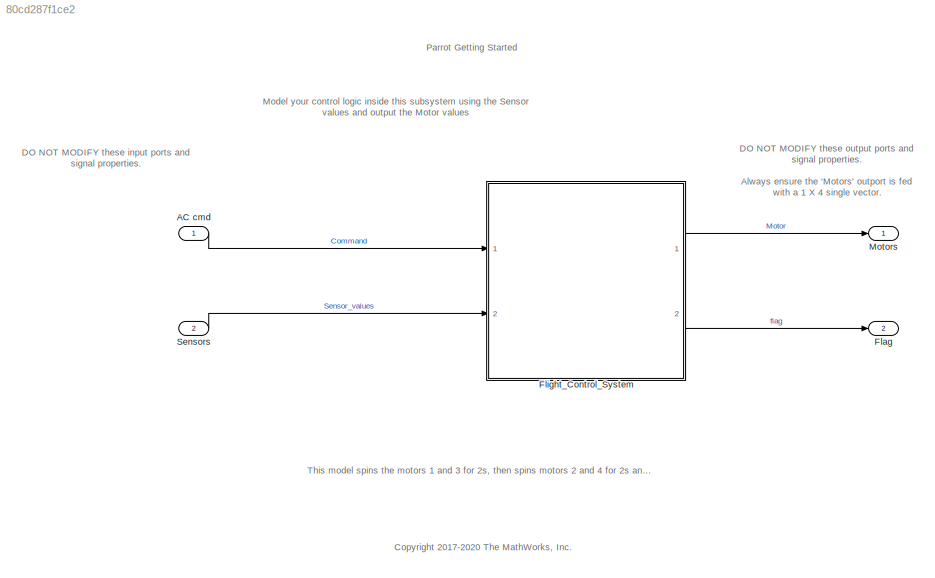
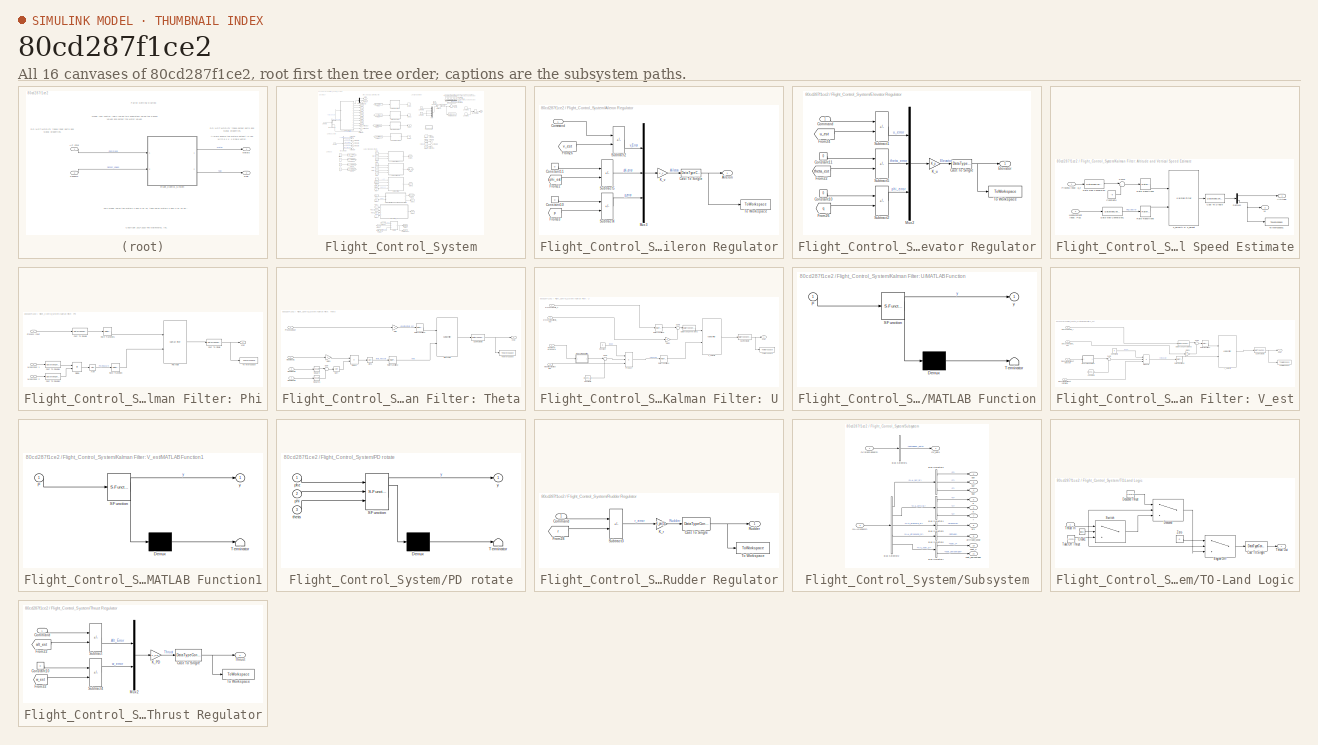
[diagram: thumbnail index - all 16 canvases of the model, root first then tree order]
MODEL slx_80cd287f1ce2
KIND model
CONFIG AbsTol = auto
CONFIG EnableMultiTasking = off
CONFIG FixedStep = auto
CONFIG InitFcn = load('BusDefinitions.mat')
CONFIG MaxStep = auto
CONFIG MinStep = auto
CONFIG RelTol = 1e-3
CONFIG SampleTimeConstraint = Unconstrained
CONFIG SolverName = FixedStepAuto
CONFIG StartTime = 0.0
CONFIG StopTime = 100
BLOCK [Inport] AC cmd
  BusOutputAsStruct = on
  OutDataTypeStr = Bus: CommandBus
BLOCK [Outport] Flag
  OutDataTypeStr = uint8
  Port = 2
  PortDimensions = 1
  VectorParamsAs1DForOutWhenUnconnected = off
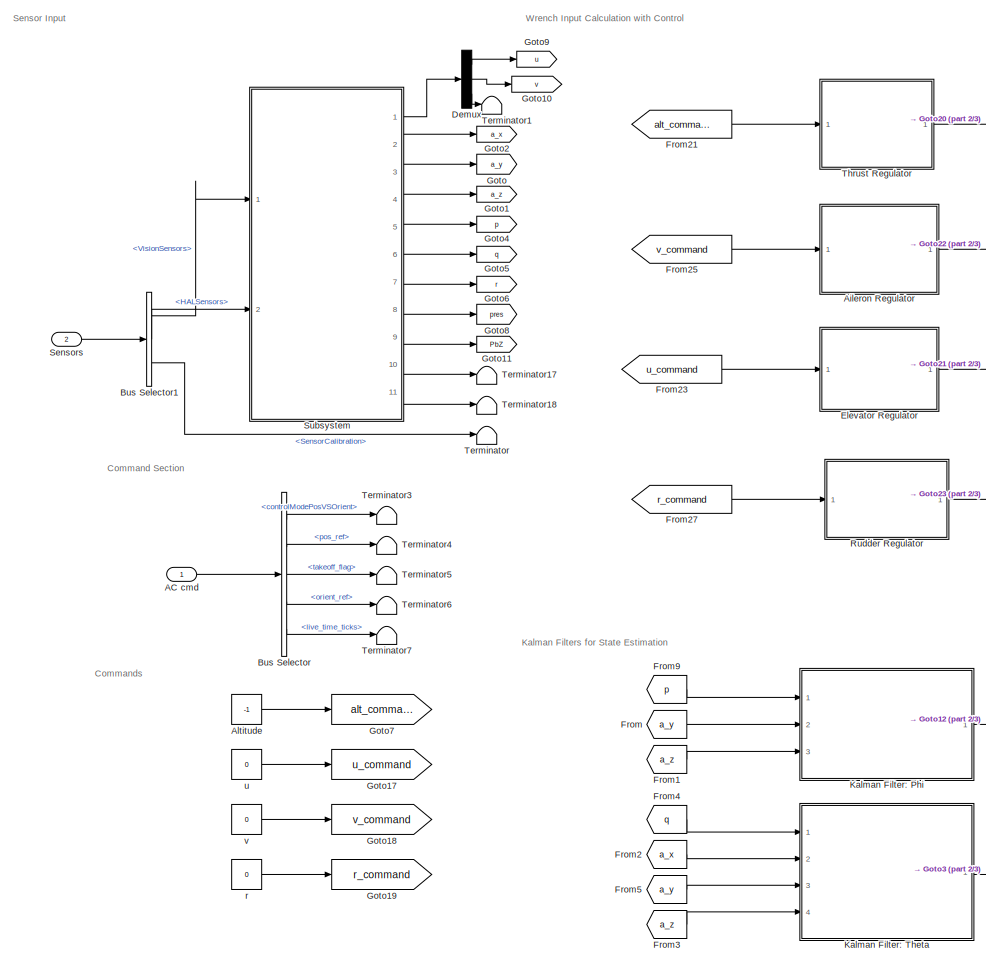
[diagram: Flight_Control_System - part 1/3, top left region]
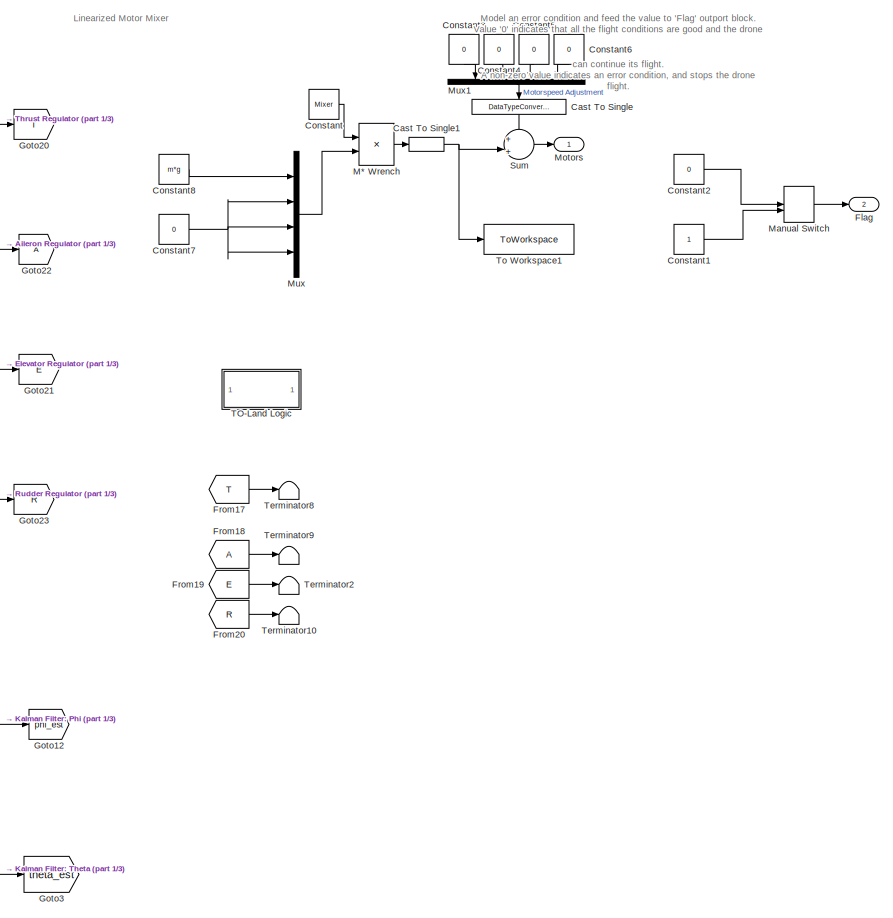
[diagram: Flight_Control_System - part 2/3, top right region]
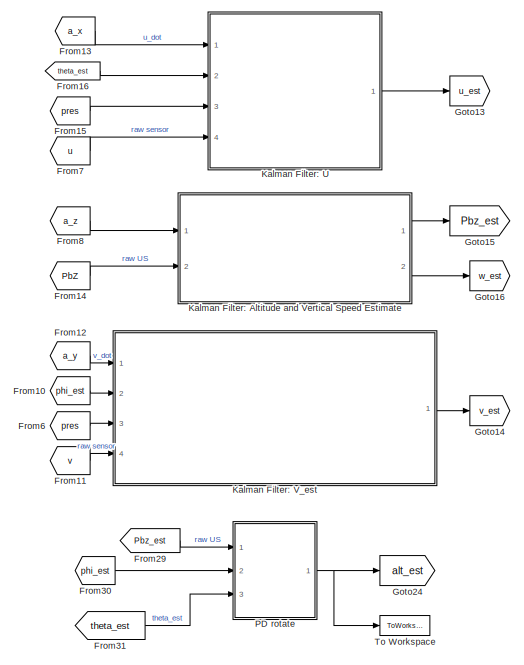
[diagram: Flight_Control_System - part 3/3, bottom center region]
BLOCK [SubSystem] Flight_Control_System
  InitFcn = codertarget.parrot.internal.fcsSubsystemCallback(gcb);
  Ports = [2, 2]
  RTWSystemCode = Reusable function
  RequestExecContextInheritance = off
BLOCK [Inport] Flight_Control_System/AC cmd
BLOCK [SubSystem] Flight_Control_System/Aileron Regulator
  Ports = [1, 1]
  RequestExecContextInheritance = off
BLOCK [Outport] Flight_Control_System/Aileron Regulator/Aileron
BLOCK [DataTypeConversion] Flight_Control_System/Aileron Regulator/Cast To Single
  OutDataTypeStr = single
  RndMeth = Floor
  SaturateOnIntegerOverflow = off
BLOCK [Inport] Flight_Control_System/Aileron Regulator/Command
BLOCK [Constant] Flight_Control_System/Aileron Regulator/Constant10
  Value = 0
BLOCK [Constant] Flight_Control_System/Aileron Regulator/Constant11
  Value = 0
BLOCK [From] Flight_Control_System/Aileron Regulator/From22
  GotoTag = phi_est
  TagVisibility = global
BLOCK [From] Flight_Control_System/Aileron Regulator/From26
  GotoTag = v_est
  TagVisibility = global
BLOCK [From] Flight_Control_System/Aileron Regulator/From33
  GotoTag = p
  TagVisibility = global
BLOCK [Gain] Flight_Control_System/Aileron Regulator/K_v
  Gain = K_v
  Multiplication = Matrix(K*u)
BLOCK [Mux] Flight_Control_System/Aileron Regulator/Mux3
  DisplayOption = bar
  Inputs = 3
  Ports = [3, 1]
BLOCK [Sum] Flight_Control_System/Aileron Regulator/Subtract2
  IconShape = rectangular
  Inputs = +-
  Ports = [2, 1]
BLOCK [Sum] Flight_Control_System/Aileron Regulator/Subtract4
  IconShape = rectangular
  Inputs = +-
  Ports = [2, 1]
BLOCK [Sum] Flight_Control_System/Aileron Regulator/Subtract5
  IconShape = rectangular
  Inputs = +-
  Ports = [2, 1]
BLOCK [ToWorkspace] Flight_Control_System/Aileron Regulator/To Workspace
  FixptAsFi = on
  MaxDataPoints = inf
  Ports = [1]
  SampleTime = -1
  SaveFormat = Timeseries
  VariableName = aileron_out
BLOCK [Constant] Flight_Control_System/Altitude
  Value = -1
BLOCK [BusSelector] Flight_Control_System/Bus Selector
  OutputSignals = controlModePosVSOrient,pos_ref,takeoff_flag,orient_ref,live_time_ticks
  Ports = [1, 5]
BLOCK [BusSelector] Flight_Control_System/Bus Selector1
  OutputSignals = VisionSensors,HALSensors,SensorCalibration
  Ports = [1, 3]
BLOCK [DataTypeConversion] Flight_Control_System/Cast To Single
  NameLocation = left
  OutDataTypeStr = single
  RndMeth = Floor
  SaturateOnIntegerOverflow = off
BLOCK [DataTypeConversion] Flight_Control_System/Cast To Single1
  OutDataTypeStr = single
  RndMeth = Floor
  SaturateOnIntegerOverflow = off
BLOCK [Constant] Flight_Control_System/Constant
  Value = Mixer
BLOCK [Constant] Flight_Control_System/Constant1
  OutDataTypeStr = uint8
BLOCK [Constant] Flight_Control_System/Constant2
  OutDataTypeStr = uint8
  Value = 0
BLOCK [Constant] Flight_Control_System/Constant3
  NameLocation = left
  Value = 0
BLOCK [Constant] Flight_Control_System/Constant4
  NameLocation = left
  Value = 0
BLOCK [Constant] Flight_Control_System/Constant5
  NameLocation = left
  Value = 0
BLOCK [Constant] Flight_Control_System/Constant6
  NameLocation = left
  Value = 0
BLOCK [Constant] Flight_Control_System/Constant7
  Value = 0
BLOCK [Constant] Flight_Control_System/Constant8
  Value = m*g
BLOCK [Demux] Flight_Control_System/Demux
  Outputs = 3
  Ports = [1, 3]
BLOCK [SubSystem] Flight_Control_System/Elevator Regulator
  Ports = [1, 1]
  RequestExecContextInheritance = off
BLOCK [DataTypeConversion] Flight_Control_System/Elevator Regulator/Cast To Single
  OutDataTypeStr = single
  RndMeth = Floor
  SaturateOnIntegerOverflow = off
BLOCK [Inport] Flight_Control_System/Elevator Regulator/Command
BLOCK [Constant] Flight_Control_System/Elevator Regulator/Constant10
  Value = 0
BLOCK [Constant] Flight_Control_System/Elevator Regulator/Constant11
  Value = 0
BLOCK [Outport] Flight_Control_System/Elevator Regulator/Elevator
BLOCK [From] Flight_Control_System/Elevator Regulator/From22
  GotoTag = theta_est
  TagVisibility = global
BLOCK [From] Flight_Control_System/Elevator Regulator/From24
  GotoTag = u_est
  TagVisibility = global
BLOCK [From] Flight_Control_System/Elevator Regulator/From26
  GotoTag = q
  TagVisibility = global
BLOCK [Gain] Flight_Control_System/Elevator Regulator/K_u
  Gain = K_u
  Multiplication = Matrix(K*u)
BLOCK [Mux] Flight_Control_System/Elevator Regulator/Mux2
  DisplayOption = bar
  Inputs = 3
  Ports = [3, 1]
BLOCK [Sum] Flight_Control_System/Elevator Regulator/Subtract1
  IconShape = rectangular
  Inputs = +-
  Ports = [2, 1]
BLOCK [Sum] Flight_Control_System/Elevator Regulator/Subtract2
  IconShape = rectangular
  Inputs = +-
  Ports = [2, 1]
BLOCK [Sum] Flight_Control_System/Elevator Regulator/Subtract5
  IconShape = rectangular
  Inputs = +-
  Ports = [2, 1]
BLOCK [ToWorkspace] Flight_Control_System/Elevator Regulator/To Workspace
  FixptAsFi = on
  MaxDataPoints = inf
  Ports = [1]
  SampleTime = -1
  SaveFormat = Timeseries
  VariableName = elevator_out
BLOCK [Outport] Flight_Control_System/Flag
  Port = 2
  VectorParamsAs1DForOutWhenUnconnected = off
BLOCK [From] Flight_Control_System/From
  GotoTag = a_y
BLOCK [From] Flight_Control_System/From1
  GotoTag = a_z
BLOCK [From] Flight_Control_System/From10
  GotoTag = phi_est
  TagVisibility = global
BLOCK [From] Flight_Control_System/From11
  GotoTag = v
BLOCK [From] Flight_Control_System/From12
  GotoTag = a_y
BLOCK [From] Flight_Control_System/From13
  GotoTag = a_x
BLOCK [From] Flight_Control_System/From14
  GotoTag = PbZ
BLOCK [From] Flight_Control_System/From15
  GotoTag = pres
BLOCK [From] Flight_Control_System/From16
  GotoTag = theta_est
  TagVisibility = global
BLOCK [From] Flight_Control_System/From17
  GotoTag = T
BLOCK [From] Flight_Control_System/From18
BLOCK [From] Flight_Control_System/From19
  GotoTag = E
BLOCK [From] Flight_Control_System/From2
  GotoTag = a_x
BLOCK [From] Flight_Control_System/From20
  GotoTag = R
BLOCK [From] Flight_Control_System/From21
  GotoTag = alt_command
BLOCK [From] Flight_Control_System/From23
  GotoTag = u_command
BLOCK [From] Flight_Control_System/From25
  GotoTag = v_command
BLOCK [From] Flight_Control_System/From27
  GotoTag = r_command
BLOCK [From] Flight_Control_System/From29
  GotoTag = Pbz_est
  TagVisibility = global
BLOCK [From] Flight_Control_System/From3
  GotoTag = a_z
BLOCK [From] Flight_Control_System/From30
  GotoTag = phi_est
  TagVisibility = global
BLOCK [From] Flight_Control_System/From31
  GotoTag = theta_est
  TagVisibility = global
BLOCK [From] Flight_Control_System/From4
  GotoTag = q
  TagVisibility = global
BLOCK [From] Flight_Control_System/From5
  GotoTag = a_y
BLOCK [From] Flight_Control_System/From6
  GotoTag = pres
BLOCK [From] Flight_Control_System/From7
  GotoTag = u
BLOCK [From] Flight_Control_System/From8
  GotoTag = a_z
BLOCK [From] Flight_Control_System/From9
  GotoTag = p
  TagVisibility = global
BLOCK [Goto] Flight_Control_System/Goto
  GotoTag = a_y
BLOCK [Goto] Flight_Control_System/Goto1
  GotoTag = a_z
BLOCK [Goto] Flight_Control_System/Goto10
  GotoTag = v
BLOCK [Goto] Flight_Control_System/Goto11
  GotoTag = PbZ
BLOCK [Goto] Flight_Control_System/Goto12
  GotoTag = phi_est
  TagVisibility = global
BLOCK [Goto] Flight_Control_System/Goto13
  GotoTag = u_est
  TagVisibility = global
BLOCK [Goto] Flight_Control_System/Goto14
  GotoTag = v_est
  TagVisibility = global
BLOCK [Goto] Flight_Control_System/Goto15
  GotoTag = Pbz_est
  TagVisibility = global
BLOCK [Goto] Flight_Control_System/Goto16
  GotoTag = w_est
  TagVisibility = global
BLOCK [Goto] Flight_Control_System/Goto17
  GotoTag = u_command
BLOCK [Goto] Flight_Control_System/Goto18
  GotoTag = v_command
BLOCK [Goto] Flight_Control_System/Goto19
  GotoTag = r_command
BLOCK [Goto] Flight_Control_System/Goto2
  GotoTag = a_x
BLOCK [Goto] Flight_Control_System/Goto20
  GotoTag = T
BLOCK [Goto] Flight_Control_System/Goto21
  GotoTag = E
BLOCK [Goto] Flight_Control_System/Goto22
BLOCK [Goto] Flight_Control_System/Goto23
  GotoTag = R
BLOCK [Goto] Flight_Control_System/Goto24
  GotoTag = alt_est
  TagVisibility = global
BLOCK [Goto] Flight_Control_System/Goto3
  GotoTag = theta_est
  TagVisibility = global
BLOCK [Goto] Flight_Control_System/Goto4
  GotoTag = p
  TagVisibility = global
BLOCK [Goto] Flight_Control_System/Goto5
  GotoTag = q
  TagVisibility = global
BLOCK [Goto] Flight_Control_System/Goto6
  GotoTag = r
  TagVisibility = global
BLOCK [Goto] Flight_Control_System/Goto7
  GotoTag = alt_command
BLOCK [Goto] Flight_Control_System/Goto8
  GotoTag = pres
BLOCK [Goto] Flight_Control_System/Goto9
  GotoTag = u
BLOCK [SubSystem] Flight_Control_System/Kalman Filter: Altitude and Vertical Speed Estimate
  Ports = [2, 2]
  RequestExecContextInheritance = off
BLOCK [Outport] Flight_Control_System/Kalman Filter: Altitude and Vertical Speed Estimate/Altitude
BLOCK [DataTypeConversion] Flight_Control_System/Kalman Filter: Altitude and Vertical Speed Estimate/Cast To Single
  OutDataTypeStr = single
  RndMeth = Floor
  SaturateOnIntegerOverflow = off
BLOCK [Constant] Flight_Control_System/Kalman Filter: Altitude and Vertical Speed Estimate/Constant6
  Value = -9
BLOCK [DataTypeConversion] Flight_Control_System/Kalman Filter: Altitude and Vertical Speed Estimate/Data Type Conversion
  OutDataTypeStr = double
  RndMeth = Floor
  SaturateOnIntegerOverflow = off
BLOCK [DataTypeConversion] Flight_Control_System/Kalman Filter: Altitude and Vertical Speed Estimate/Data Type Conversion1
  OutDataTypeStr = double
  RndMeth = Floor
  SaturateOnIntegerOverflow = off
BLOCK [Demux] Flight_Control_System/Kalman Filter: Altitude and Vertical Speed Estimate/Demux1
  Outputs = 2
  Ports = [1, 2]
BLOCK [Inport] Flight_Control_System/Kalman Filter: Altitude and Vertical Speed Estimate/Measurement Input: PbZ
  Port = 2
BLOCK [Inport] Flight_Control_System/Kalman Filter: Altitude and Vertical Speed Estimate/Process Input: a_z 
BLOCK [RateTransition] Flight_Control_System/Kalman Filter: Altitude and Vertical Speed Estimate/Rate Transition8
  OutPortSampleTime = 1/200
BLOCK [RateTransition] Flight_Control_System/Kalman Filter: Altitude and Vertical Speed Estimate/Rate Transition9
  OutPortSampleTime = 1/200
BLOCK [Sum] Flight_Control_System/Kalman Filter: Altitude and Vertical Speed Estimate/Sum5
  Inputs = |+-
  Ports = [2, 1]
BLOCK [ToWorkspace] Flight_Control_System/Kalman Filter: Altitude and Vertical Speed Estimate/To Workspace1
  FixptAsFi = on
  MaxDataPoints = inf
  Ports = [1]
  SampleTime = -1
  SaveFormat = Timeseries
  VariableName = w_est
BLOCK [Outport] Flight_Control_System/Kalman Filter: Altitude and Vertical Speed Estimate/W
  Port = 2
BLOCK [Reference] Flight_Control_System/Kalman Filter: Altitude and Vertical Speed Estimate/z_velocity & z_height  REF=ctrlSharedLib/Kalman Filter
  Ports = [2, 1]
  SourceBlock = ctrlSharedLib/Kalman Filter
  SourceProductBaseCode = CT,ID
  SourceType = ctrlKalmanFilter
BLOCK [SubSystem] Flight_Control_System/Kalman Filter: Phi
  Ports = [3, 1]
  RequestExecContextInheritance = off
BLOCK [Trigonometry] Flight_Control_System/Kalman Filter: Phi/Atan
  Operator = atan
  Ports = [1, 1]
BLOCK [DataTypeConversion] Flight_Control_System/Kalman Filter: Phi/Cast To Double
  OutDataTypeStr = double
  RndMeth = Floor
  SaturateOnIntegerOverflow = off
BLOCK [DataTypeConversion] Flight_Control_System/Kalman Filter: Phi/Cast To Double1
  OutDataTypeStr = double
  RndMeth = Floor
  SaturateOnIntegerOverflow = off
BLOCK [DataTypeConversion] Flight_Control_System/Kalman Filter: Phi/Cast To Double2
  OutDataTypeStr = double
  RndMeth = Floor
  SaturateOnIntegerOverflow = off
BLOCK [DataTypeConversion] Flight_Control_System/Kalman Filter: Phi/Cast To Single
  OutDataTypeStr = single
  RndMeth = Floor
  SaturateOnIntegerOverflow = off
BLOCK [Product] Flight_Control_System/Kalman Filter: Phi/Divide
  Inputs = */
  Ports = [2, 1]
BLOCK [Inport] Flight_Control_System/Kalman Filter: Phi/Model input 1
  Port = 2
BLOCK [Inport] Flight_Control_System/Kalman Filter: Phi/Model input 2
  Port = 3
BLOCK [Inport] Flight_Control_System/Kalman Filter: Phi/Process Input
BLOCK [RateTransition] Flight_Control_System/Kalman Filter: Phi/Rate Transition
  OutPortSampleTime = 1/200
BLOCK [RateTransition] Flight_Control_System/Kalman Filter: Phi/Rate Transition1
  OutPortSampleTime = 1/200
BLOCK [Reference] Flight_Control_System/Kalman Filter: Phi/Roll Angle  REF=ctrlSharedLib/Kalman Filter
  Ports = [2, 1]
  SourceBlock = ctrlSharedLib/Kalman Filter
  SourceProductBaseCode = CT,ID
  SourceType = ctrlKalmanFilter
BLOCK [ToWorkspace] Flight_Control_System/Kalman Filter: Phi/To Workspace
  FixptAsFi = on
  MaxDataPoints = inf
  Ports = [1]
  SampleTime = -1
  SaveFormat = Timeseries
  VariableName = phi_est
BLOCK [Outport] Flight_Control_System/Kalman Filter: Phi/xhat
BLOCK [SubSystem] Flight_Control_System/Kalman Filter: Theta
  Ports = [4, 1]
  RequestExecContextInheritance = off
BLOCK [Trigonometry] Flight_Control_System/Kalman Filter: Theta/Atan1
  Operator = atan
  Ports = [1, 1]
BLOCK [DataTypeConversion] Flight_Control_System/Kalman Filter: Theta/Cast To Single
  OutDataTypeStr = single
  RndMeth = Floor
  SaturateOnIntegerOverflow = off
BLOCK [Product] Flight_Control_System/Kalman Filter: Theta/Divide1
  Inputs = */
  Ports = [2, 1]
BLOCK [Gain] Flight_Control_System/Kalman Filter: Theta/Gain
  Gain = -1
BLOCK [Gain] Flight_Control_System/Kalman Filter: Theta/Gain1
  Gain = -1
BLOCK [Inport] Flight_Control_System/Kalman Filter: Theta/Model Input 1
  Port = 2
BLOCK [Inport] Flight_Control_System/Kalman Filter: Theta/Model Input 2
  Port = 3
BLOCK [Inport] Flight_Control_System/Kalman Filter: Theta/Model Input 3
  Port = 4
BLOCK [Reference] Flight_Control_System/Kalman Filter: Theta/Pitch Angle  REF=ctrlSharedLib/Kalman Filter
  Ports = [2, 1]
  SourceBlock = ctrlSharedLib/Kalman Filter
  SourceProductBaseCode = CT,ID
  SourceType = ctrlKalmanFilter
BLOCK [Inport] Flight_Control_System/Kalman Filter: Theta/Process Input
BLOCK [RateTransition] Flight_Control_System/Kalman Filter: Theta/Rate Transition2
  OutPortSampleTime = 1/200
BLOCK [RateTransition] Flight_Control_System/Kalman Filter: Theta/Rate Transition3
  OutPortSampleTime = 1/200
BLOCK [Sqrt] Flight_Control_System/Kalman Filter: Theta/Sqrt
BLOCK [Math] Flight_Control_System/Kalman Filter: Theta/Square
  Operator = square
  Ports = [1, 1]
BLOCK [Math] Flight_Control_System/Kalman Filter: Theta/Square1
  Operator = square
  Ports = [1, 1]
BLOCK [Sum] Flight_Control_System/Kalman Filter: Theta/Sum
  Inputs = |++
  Ports = [2, 1]
BLOCK [ToWorkspace] Flight_Control_System/Kalman Filter: Theta/To Workspace
  FixptAsFi = on
  MaxDataPoints = inf
  Ports = [1]
  SampleTime = -1
  SaveFormat = Timeseries
  VariableName = theta_est
BLOCK [Outport] Flight_Control_System/Kalman Filter: Theta/xhat
BLOCK [SubSystem] Flight_Control_System/Kalman Filter: U
  Ports = [4, 1]
  RequestExecContextInheritance = off
BLOCK [DataTypeConversion] Flight_Control_System/Kalman Filter: U/Cast To Single
  OutDataTypeStr = single
  RndMeth = Floor
  SaturateOnIntegerOverflow = off
BLOCK [Constant] Flight_Control_System/Kalman Filter: U/Constant
  Value = ff
BLOCK [Constant] Flight_Control_System/Kalman Filter: U/Constant5
  Value = ground_alt
BLOCK [DataTypeConversion] Flight_Control_System/Kalman Filter: U/Data Type Conversion2
  OutDataTypeStr = double
  RndMeth = Floor
  SaturateOnIntegerOverflow = off
BLOCK [Gain] Flight_Control_System/Kalman Filter: U/Gain2
  Gain = -g
BLOCK [SubSystem] Flight_Control_System/Kalman Filter: U/MATLAB Function
  ErrorFcn = Stateflow.Translate.translate
  PermitHierarchicalResolution = ExplicitOnly
  Ports = [1, 1]
  RequestExecContextInheritance = off
  SFBlockType = MATLAB Function
  TreatAsAtomicUnit = on
BLOCK [Demux] Flight_Control_System/Kalman Filter: U/MATLAB Function/ Demux 
  Outputs = 1
  Ports = [1, 1]
BLOCK [S-Function] Flight_Control_System/Kalman Filter: U/MATLAB Function/ SFunction 
  EnableBusSupport = on
  FunctionName = sf_sfun
  PortCounts = [1 2]
  Ports = [1, 2]
  SFcnIsStateOwnerBlock = off
  SFunctionDeploymentMode = off
  Tag = Stateflow S-Function 2
BLOCK [Terminator] Flight_Control_System/Kalman Filter: U/MATLAB Function/ Terminator 
BLOCK [Inport] Flight_Control_System/Kalman Filter: U/MATLAB Function/P
BLOCK [Outport] Flight_Control_System/Kalman Filter: U/MATLAB Function/y
BLOCK [Inport] Flight_Control_System/Kalman Filter: U/Model Input: optical flow
  Port = 4
BLOCK [Inport] Flight_Control_System/Kalman Filter: U/Model Input: pressure
  Port = 3
BLOCK [Product] Flight_Control_System/Kalman Filter: U/Product
  Inputs = 3
  Ports = [3, 1]
BLOCK [RateTransition] Flight_Control_System/Kalman Filter: U/Rate Transition4
  OutPortSampleTime = 1/200
BLOCK [RateTransition] Flight_Control_System/Kalman Filter: U/Rate Transition5
  OutPortSampleTime = 1/200
BLOCK [Sum] Flight_Control_System/Kalman Filter: U/Sum1
  Inputs = |+-
  Ports = [2, 1]
BLOCK [Sum] Flight_Control_System/Kalman Filter: U/Sum3
  Inputs = |++
  Ports = [2, 1]
BLOCK [ToWorkspace] Flight_Control_System/Kalman Filter: U/To Workspace
  FixptAsFi = on
  MaxDataPoints = inf
  Ports = [1]
  SampleTime = -1
  SaveFormat = Timeseries
  VariableName = u_est
BLOCK [Inport] Flight_Control_System/Kalman Filter: U/process input: a_x
BLOCK [Inport] Flight_Control_System/Kalman Filter: U/process input: theta_est
  Port = 2
BLOCK [Reference] Flight_Control_System/Kalman Filter: U/x_velocity  REF=ctrlSharedLib/Kalman Filter
  Ports = [2, 1]
  SourceBlock = ctrlSharedLib/Kalman Filter
  SourceProductBaseCode = CT,ID
  SourceType = ctrlKalmanFilter
BLOCK [Outport] Flight_Control_System/Kalman Filter: U/xhat
BLOCK [SubSystem] Flight_Control_System/Kalman Filter: V_est
  Ports = [4, 1]
  RequestExecContextInheritance = off
BLOCK [DataTypeConversion] Flight_Control_System/Kalman Filter: V_est/Cast To Single
  OutDataTypeStr = single
  RndMeth = Floor
  SaturateOnIntegerOverflow = off
BLOCK [Constant] Flight_Control_System/Kalman Filter: V_est/Constant3
  Value = ff
BLOCK [Constant] Flight_Control_System/Kalman Filter: V_est/Constant4
  Value = ground_alt
BLOCK [DataTypeConversion] Flight_Control_System/Kalman Filter: V_est/Data Type Conversion3
  OutDataTypeStr = double
  RndMeth = Floor
  SaturateOnIntegerOverflow = off
BLOCK [Gain] Flight_Control_System/Kalman Filter: V_est/Gain3
  Gain = g
BLOCK [SubSystem] Flight_Control_System/Kalman Filter: V_est/MATLAB Function1
  ErrorFcn = Stateflow.Translate.translate
  PermitHierarchicalResolution = ExplicitOnly
  Ports = [1, 1]
  RequestExecContextInheritance = off
  SFBlockType = MATLAB Function
  TreatAsAtomicUnit = on
BLOCK [Demux] Flight_Control_System/Kalman Filter: V_est/MATLAB Function1/ Demux 
  Outputs = 1
  Ports = [1, 1]
BLOCK [S-Function] Flight_Control_System/Kalman Filter: V_est/MATLAB Function1/ SFunction 
  EnableBusSupport = on
  FunctionName = sf_sfun
  PortCounts = [1 2]
  Ports = [1, 2]
  SFcnIsStateOwnerBlock = off
  SFunctionDeploymentMode = off
  Tag = Stateflow S-Function 1
BLOCK [Terminator] Flight_Control_System/Kalman Filter: V_est/MATLAB Function1/ Terminator 
BLOCK [Inport] Flight_Control_System/Kalman Filter: V_est/MATLAB Function1/P
BLOCK [Outport] Flight_Control_System/Kalman Filter: V_est/MATLAB Function1/y
BLOCK [Product] Flight_Control_System/Kalman Filter: V_est/Product1
  Inputs = 3
  Ports = [3, 1]
BLOCK [RateTransition] Flight_Control_System/Kalman Filter: V_est/Rate Transition6
  OutPortSampleTime = 1/200
BLOCK [RateTransition] Flight_Control_System/Kalman Filter: V_est/Rate Transition7
  OutPortSampleTime = 1/200
BLOCK [Sum] Flight_Control_System/Kalman Filter: V_est/Sum2
  Inputs = |+-
  Ports = [2, 1]
BLOCK [Sum] Flight_Control_System/Kalman Filter: V_est/Sum4
  Inputs = |++
  Ports = [2, 1]
BLOCK [ToWorkspace] Flight_Control_System/Kalman Filter: V_est/To Workspace
  FixptAsFi = on
  MaxDataPoints = inf
  Ports = [1]
  SampleTime = -1
  SaveFormat = Timeseries
  VariableName = v_est
BLOCK [Inport] Flight_Control_System/Kalman Filter: V_est/measurement input: optical flow
  Port = 4
BLOCK [Inport] Flight_Control_System/Kalman Filter: V_est/measurement input: pressure
  Port = 3
BLOCK [Inport] Flight_Control_System/Kalman Filter: V_est/process input: a_y   
BLOCK [Inport] Flight_Control_System/Kalman Filter: V_est/process input: phi_hat 
  Port = 2
BLOCK [Outport] Flight_Control_System/Kalman Filter: V_est/xhat
BLOCK [Reference] Flight_Control_System/Kalman Filter: V_est/y_velocity  REF=ctrlSharedLib/Kalman Filter
  Ports = [2, 1]
  SourceBlock = ctrlSharedLib/Kalman Filter
  SourceProductBaseCode = CT,ID
  SourceType = ctrlKalmanFilter
BLOCK [Product] Flight_Control_System/M* Wrench
  Multiplication = Matrix(*)
  Ports = [2, 1]
BLOCK [ManualSwitch] Flight_Control_System/Manual Switch
BLOCK [Outport] Flight_Control_System/Motors
  VectorParamsAs1DForOutWhenUnconnected = off
BLOCK [Mux] Flight_Control_System/Mux
  DisplayOption = bar
  Ports = [4, 1]
BLOCK [Mux] Flight_Control_System/Mux1
  DisplayOption = bar
  NameLocation = left
  Ports = [4, 1]
BLOCK [SubSystem] Flight_Control_System/PD rotate
  ErrorFcn = Stateflow.Translate.translate
  PermitHierarchicalResolution = ExplicitOnly
  Ports = [3, 1]
  RequestExecContextInheritance = off
  SFBlockType = MATLAB Function
  TreatAsAtomicUnit = on
BLOCK [Demux] Flight_Control_System/PD rotate/ Demux 
  Outputs = 1
  Ports = [1, 1]
BLOCK [S-Function] Flight_Control_System/PD rotate/ SFunction 
  EnableBusSupport = on
  FunctionName = sf_sfun
  PortCounts = [3 2]
  Ports = [3, 2]
  SFcnIsStateOwnerBlock = off
  SFunctionDeploymentMode = off
  Tag = Stateflow S-Function 3
BLOCK [Terminator] Flight_Control_System/PD rotate/ Terminator 
BLOCK [Inport] Flight_Control_System/PD rotate/pbz
BLOCK [Inport] Flight_Control_System/PD rotate/phi
  Port = 2
BLOCK [Inport] Flight_Control_System/PD rotate/theta
  Port = 3
BLOCK [Outport] Flight_Control_System/PD rotate/y
BLOCK [SubSystem] Flight_Control_System/Rudder Regulator
  Ports = [1, 1]
  RequestExecContextInheritance = off
BLOCK [DataTypeConversion] Flight_Control_System/Rudder Regulator/Cast To Single
  OutDataTypeStr = single
  RndMeth = Floor
  SaturateOnIntegerOverflow = off
BLOCK [Inport] Flight_Control_System/Rudder Regulator/Command
BLOCK [From] Flight_Control_System/Rudder Regulator/From28
  GotoTag = r
  TagVisibility = global
BLOCK [Gain] Flight_Control_System/Rudder Regulator/K_r
  Gain = K_psi(1)
BLOCK [Outport] Flight_Control_System/Rudder Regulator/Rudder
BLOCK [Sum] Flight_Control_System/Rudder Regulator/Subtract3
  IconShape = rectangular
  Inputs = +-
  Ports = [2, 1]
BLOCK [ToWorkspace] Flight_Control_System/Rudder Regulator/To Workspace
  FixptAsFi = on
  MaxDataPoints = inf
  Ports = [1]
  SampleTime = -1
  SaveFormat = Timeseries
  VariableName = rudder_out
BLOCK [Inport] Flight_Control_System/Sensors
  Port = 2
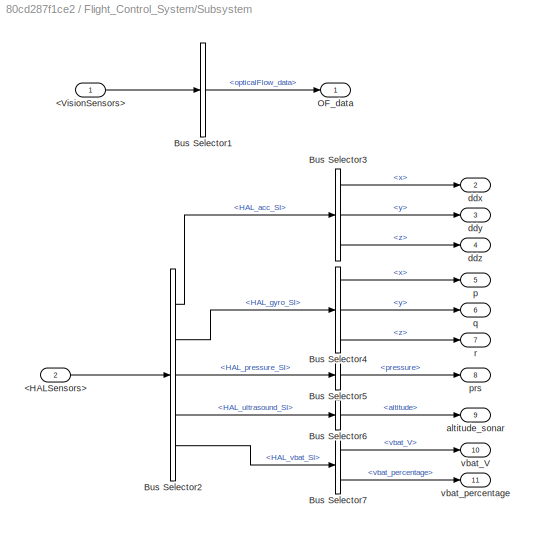
BLOCK [SubSystem] Flight_Control_System/Subsystem
  Ports = [2, 11]
  RequestExecContextInheritance = off
BLOCK [Inport] Flight_Control_System/Subsystem/<HALSensors>
  Port = 2
BLOCK [Inport] Flight_Control_System/Subsystem/<VisionSensors>
BLOCK [BusSelector] Flight_Control_System/Subsystem/Bus Selector1
  OutputSignals = opticalFlow_data
  Ports = [1, 1]
BLOCK [BusSelector] Flight_Control_System/Subsystem/Bus Selector2
  OutputSignals = HAL_acc_SI,HAL_gyro_SI,HAL_pressure_SI,HAL_ultrasound_SI,HAL_vbat_SI
  Ports = [1, 5]
BLOCK [BusSelector] Flight_Control_System/Subsystem/Bus Selector3
  OutputSignals = x,y,z
  Ports = [1, 3]
BLOCK [BusSelector] Flight_Control_System/Subsystem/Bus Selector4
  OutputSignals = x,y,z
  Ports = [1, 3]
BLOCK [BusSelector] Flight_Control_System/Subsystem/Bus Selector5
  OutputSignals = pressure
  Ports = [1, 1]
BLOCK [BusSelector] Flight_Control_System/Subsystem/Bus Selector6
  OutputSignals = altitude
  Ports = [1, 1]
BLOCK [BusSelector] Flight_Control_System/Subsystem/Bus Selector7
  OutputSignals = vbat_V,vbat_percentage
  Ports = [1, 2]
BLOCK [Outport] Flight_Control_System/Subsystem/OF_data
  VectorParamsAs1DForOutWhenUnconnected = off
BLOCK [Outport] Flight_Control_System/Subsystem/altitude_sonar
  Port = 9
  VectorParamsAs1DForOutWhenUnconnected = off
BLOCK [Outport] Flight_Control_System/Subsystem/ddx
  Port = 2
  VectorParamsAs1DForOutWhenUnconnected = off
BLOCK [Outport] Flight_Control_System/Subsystem/ddy
  Port = 3
  VectorParamsAs1DForOutWhenUnconnected = off
BLOCK [Outport] Flight_Control_System/Subsystem/ddz
  Port = 4
  VectorParamsAs1DForOutWhenUnconnected = off
BLOCK [Outport] Flight_Control_System/Subsystem/p
  Port = 5
  VectorParamsAs1DForOutWhenUnconnected = off
BLOCK [Outport] Flight_Control_System/Subsystem/prs
  Port = 8
  VectorParamsAs1DForOutWhenUnconnected = off
BLOCK [Outport] Flight_Control_System/Subsystem/q
  Port = 6
  VectorParamsAs1DForOutWhenUnconnected = off
BLOCK [Outport] Flight_Control_System/Subsystem/r
  Port = 7
  VectorParamsAs1DForOutWhenUnconnected = off
BLOCK [Outport] Flight_Control_System/Subsystem/vbat_V
  Port = 10
  VectorParamsAs1DForOutWhenUnconnected = off
BLOCK [Outport] Flight_Control_System/Subsystem/vbat_percentage
  Port = 11
  VectorParamsAs1DForOutWhenUnconnected = off
BLOCK [Sum] Flight_Control_System/Sum
  Inputs = +|+||
  Ports = [2, 1]
BLOCK [SubSystem] Flight_Control_System/TO-Land Logic
  Commented = on
  Ports = [1, 1]
  RequestExecContextInheritance = off
BLOCK [DataTypeConversion] Flight_Control_System/TO-Land Logic/Cast To Single
  OutDataTypeStr = single
  RndMeth = Floor
  SaturateOnIntegerOverflow = off
BLOCK [Clock] Flight_Control_System/TO-Land Logic/Clock1
BLOCK [Switch] Flight_Control_System/TO-Land Logic/Descend
  InputSameDT = off
  SaturateOnIntegerOverflow = off
  Threshold = 10
BLOCK [Constant] Flight_Control_System/TO-Land Logic/Descend Thrust
  Value = 0.5*m*g
BLOCK [Switch] Flight_Control_System/TO-Land Logic/Engine Off!
  InputSameDT = off
  SaturateOnIntegerOverflow = off
  Threshold = 13
BLOCK [Switch] Flight_Control_System/TO-Land Logic/Switch
  InputSameDT = off
  SaturateOnIntegerOverflow = off
  Threshold = 2
BLOCK [Constant] Flight_Control_System/TO-Land Logic/Take Off Thrust
  Value = 1.2*m*g
BLOCK [Inport] Flight_Control_System/TO-Land Logic/Thrust In
  NameLocation = top
BLOCK [Outport] Flight_Control_System/TO-Land Logic/Thrust Out
BLOCK [Constant] Flight_Control_System/TO-Land Logic/Zero
  Value = 0
BLOCK [Terminator] Flight_Control_System/Terminator
BLOCK [Terminator] Flight_Control_System/Terminator1
BLOCK [Terminator] Flight_Control_System/Terminator10
BLOCK [Terminator] Flight_Control_System/Terminator17
BLOCK [Terminator] Flight_Control_System/Terminator18
BLOCK [Terminator] Flight_Control_System/Terminator2
BLOCK [Terminator] Flight_Control_System/Terminator3
BLOCK [Terminator] Flight_Control_System/Terminator4
BLOCK [Terminator] Flight_Control_System/Terminator5
BLOCK [Terminator] Flight_Control_System/Terminator6
BLOCK [Terminator] Flight_Control_System/Terminator7
BLOCK [Terminator] Flight_Control_System/Terminator8
BLOCK [Terminator] Flight_Control_System/Terminator9
BLOCK [SubSystem] Flight_Control_System/Thrust Regulator
  Ports = [1, 1]
  RequestExecContextInheritance = off
BLOCK [DataTypeConversion] Flight_Control_System/Thrust Regulator/Cast To Single
  OutDataTypeStr = single
  RndMeth = Floor
  SaturateOnIntegerOverflow = off
BLOCK [Inport] Flight_Control_System/Thrust Regulator/Command
BLOCK [Constant] Flight_Control_System/Thrust Regulator/Constant10
  Value = 0
BLOCK [From] Flight_Control_System/Thrust Regulator/From22
  GotoTag = alt_est
  TagVisibility = global
BLOCK [From] Flight_Control_System/Thrust Regulator/From32
  GotoTag = w_est
  TagVisibility = global
BLOCK [Gain] Flight_Control_System/Thrust Regulator/K_PD
  Gain = K_PD
  Multiplication = Matrix(K*u)
BLOCK [Mux] Flight_Control_System/Thrust Regulator/Mux2
  DisplayOption = bar
  Inputs = 2
  Ports = [2, 1]
BLOCK [Sum] Flight_Control_System/Thrust Regulator/Subtract
  IconShape = rectangular
  Inputs = +-
  Ports = [2, 1]
BLOCK [Sum] Flight_Control_System/Thrust Regulator/Subtract4
  IconShape = rectangular
  Inputs = +-
  Ports = [2, 1]
BLOCK [Outport] Flight_Control_System/Thrust Regulator/Thrust
BLOCK [ToWorkspace] Flight_Control_System/Thrust Regulator/To Workspace
  FixptAsFi = on
  MaxDataPoints = inf
  Ports = [1]
  SampleTime = -1
  SaveFormat = Timeseries
  VariableName = thrust_out
BLOCK [ToWorkspace] Flight_Control_System/To Workspace
  FixptAsFi = on
  MaxDataPoints = inf
  Ports = [1]
  SampleTime = -1
  SaveFormat = Timeseries
  VariableName = alt_est
BLOCK [ToWorkspace] Flight_Control_System/To Workspace1
  FixptAsFi = on
  MaxDataPoints = inf
  Ports = [1]
  SampleTime = -1
  SaveFormat = Timeseries
  VariableName = mixer_out
BLOCK [Constant] Flight_Control_System/r
  Value = 0
BLOCK [Constant] Flight_Control_System/u
  Value = 0
BLOCK [Constant] Flight_Control_System/v
  Value = 0
BLOCK [Outport] Motors
  OutDataTypeStr = single
  PortDimensions = [1 4]
  VectorParamsAs1DForOutWhenUnconnected = off
BLOCK [Inport] Sensors
  BusOutputAsStruct = on
  OutDataTypeStr = Bus: SensorsBus
  Port = 2
ANNOTATION (root): This model spins the motors 1 and 3 for 2s, then spins motors 2 and 4 for 2s and so on.
ANNOTATION (root): <copyright redacted>
ANNOTATION (root): DO NOT MODIFY these input ports and signal properties.
ANNOTATION (root): DO NOT MODIFY these output ports and signal properties. Always ensure the 'Motors' outport is fed with a 1 X 4 single vector. Always ensure the 'Flag' outport is fed with a 1 X 1 uint8 value.
ANNOTATION (root): Model your control logic inside this subsystem using the Sensor values and output the Motor values
ANNOTATION (root): Parrot Getting Started
ANNOTATION Flight_Control_System: Command Section
ANNOTATION Flight_Control_System: Commands
ANNOTATION Flight_Control_System: Kalman Filters for State Estimation
ANNOTATION Flight_Control_System: Linearized Motor Mixer
ANNOTATION Flight_Control_System: Model an error condition and feed the value to 'Flag' outport block. Value '0' indicates that all the flight conditions are good and the drone can continue its flight. A non-zero value indicates an error condition, and stops the drone flight.
ANNOTATION Flight_Control_System: Sensor Input
ANNOTATION Flight_Control_System: Wrench Input Calculation with Control
LINE AC cmd:1 -> Flight_Control_System:1
LINE Flight_Control_System/AC cmd:1 -> Flight_Control_System/Bus Selector:1
NET Flight_Control_System/Aileron Regulator/Cast To Single:1 -> Flight_Control_System/Aileron Regulator/Aileron:1, Flight_Control_System/Aileron Regulator/To Workspace:1
LINE Flight_Control_System/Aileron Regulator/Command:1 -> Flight_Control_System/Aileron Regulator/Subtract2:1
LINE Flight_Control_System/Aileron Regulator/Constant10:1 -> Flight_Control_System/Aileron Regulator/Subtract4:1
LINE Flight_Control_System/Aileron Regulator/Constant11:1 -> Flight_Control_System/Aileron Regulator/Subtract5:1
LINE Flight_Control_System/Aileron Regulator/From22:1 -> Flight_Control_System/Aileron Regulator/Subtract5:2
LINE Flight_Control_System/Aileron Regulator/From26:1 -> Flight_Control_System/Aileron Regulator/Subtract2:2
LINE Flight_Control_System/Aileron Regulator/From33:1 -> Flight_Control_System/Aileron Regulator/Subtract4:2
LINE Flight_Control_System/Aileron Regulator/K_v:1 -> Flight_Control_System/Aileron Regulator/Cast To Single:1
LINE Flight_Control_System/Aileron Regulator/Mux3:1 -> Flight_Control_System/Aileron Regulator/K_v:1
LINE Flight_Control_System/Aileron Regulator/Subtract2:1 -> Flight_Control_System/Aileron Regulator/Mux3:1
LINE Flight_Control_System/Aileron Regulator/Subtract4:1 -> Flight_Control_System/Aileron Regulator/Mux3:3
LINE Flight_Control_System/Aileron Regulator/Subtract5:1 -> Flight_Control_System/Aileron Regulator/Mux3:2
LINE Flight_Control_System/Aileron Regulator:1 -> Flight_Control_System/Goto22:1
LINE Flight_Control_System/Altitude:1 -> Flight_Control_System/Goto7:1
LINE Flight_Control_System/Bus Selector1:1 -> Flight_Control_System/Subsystem:1
LINE Flight_Control_System/Bus Selector1:2 -> Flight_Control_System/Subsystem:2
LINE Flight_Control_System/Bus Selector1:3 -> Flight_Control_System/Terminator:1
LINE Flight_Control_System/Bus Selector:1 -> Flight_Control_System/Terminator3:1
LINE Flight_Control_System/Bus Selector:2 -> Flight_Control_System/Terminator4:1
LINE Flight_Control_System/Bus Selector:3 -> Flight_Control_System/Terminator5:1
LINE Flight_Control_System/Bus Selector:4 -> Flight_Control_System/Terminator6:1
LINE Flight_Control_System/Bus Selector:5 -> Flight_Control_System/Terminator7:1
NET Flight_Control_System/Cast To Single1:1 -> Flight_Control_System/Sum:2, Flight_Control_System/To Workspace1:1
LINE Flight_Control_System/Cast To Single:1 -> Flight_Control_System/Sum:1
LINE Flight_Control_System/Constant1:1 -> Flight_Control_System/Manual Switch:2
LINE Flight_Control_System/Constant2:1 -> Flight_Control_System/Manual Switch:1
LINE Flight_Control_System/Constant3:1 -> Flight_Control_System/Mux1:1
LINE Flight_Control_System/Constant4:1 -> Flight_Control_System/Mux1:2
LINE Flight_Control_System/Constant5:1 -> Flight_Control_System/Mux1:3
LINE Flight_Control_System/Constant6:1 -> Flight_Control_System/Mux1:4
NET Flight_Control_System/Constant7:1 -> Flight_Control_System/Mux:2, Flight_Control_System/Mux:3, Flight_Control_System/Mux:4
LINE Flight_Control_System/Constant8:1 -> Flight_Control_System/Mux:1
LINE Flight_Control_System/Constant:1 -> Flight_Control_System/M* Wrench:1
LINE Flight_Control_System/Demux:1 -> Flight_Control_System/Goto9:1
LINE Flight_Control_System/Demux:2 -> Flight_Control_System/Goto10:1
LINE Flight_Control_System/Demux:3 -> Flight_Control_System/Terminator1:1
NET Flight_Control_System/Elevator Regulator/Cast To Single:1 -> Flight_Control_System/Elevator Regulator/Elevator:1, Flight_Control_System/Elevator Regulator/To Workspace:1
LINE Flight_Control_System/Elevator Regulator/Command:1 -> Flight_Control_System/Elevator Regulator/Subtract1:1
LINE Flight_Control_System/Elevator Regulator/Constant10:1 -> Flight_Control_System/Elevator Regulator/Subtract2:1
LINE Flight_Control_System/Elevator Regulator/Constant11:1 -> Flight_Control_System/Elevator Regulator/Subtract5:1
LINE Flight_Control_System/Elevator Regulator/From22:1 -> Flight_Control_System/Elevator Regulator/Subtract5:2
LINE Flight_Control_System/Elevator Regulator/From24:1 -> Flight_Control_System/Elevator Regulator/Subtract1:2
LINE Flight_Control_System/Elevator Regulator/From26:1 -> Flight_Control_System/Elevator Regulator/Subtract2:2
LINE Flight_Control_System/Elevator Regulator/K_u:1 -> Flight_Control_System/Elevator Regulator/Cast To Single:1
LINE Flight_Control_System/Elevator Regulator/Mux2:1 -> Flight_Control_System/Elevator Regulator/K_u:1
LINE Flight_Control_System/Elevator Regulator/Subtract1:1 -> Flight_Control_System/Elevator Regulator/Mux2:1
LINE Flight_Control_System/Elevator Regulator/Subtract2:1 -> Flight_Control_System/Elevator Regulator/Mux2:3
LINE Flight_Control_System/Elevator Regulator/Subtract5:1 -> Flight_Control_System/Elevator Regulator/Mux2:2
LINE Flight_Control_System/Elevator Regulator:1 -> Flight_Control_System/Goto21:1
LINE Flight_Control_System/From10:1 -> Flight_Control_System/Kalman Filter: V_est:2
LINE Flight_Control_System/From11:1 -> Flight_Control_System/Kalman Filter: V_est:4
LINE Flight_Control_System/From12:1 -> Flight_Control_System/Kalman Filter: V_est:1
LINE Flight_Control_System/From13:1 -> Flight_Control_System/Kalman Filter: U:1
LINE Flight_Control_System/From14:1 -> Flight_Control_System/Kalman Filter: Altitude and Vertical Speed Estimate:2
LINE Flight_Control_System/From15:1 -> Flight_Control_System/Kalman Filter: U:3
LINE Flight_Control_System/From16:1 -> Flight_Control_System/Kalman Filter: U:2
LINE Flight_Control_System/From17:1 -> Flight_Control_System/Terminator8:1
LINE Flight_Control_System/From18:1 -> Flight_Control_System/Terminator9:1
LINE Flight_Control_System/From19:1 -> Flight_Control_System/Terminator2:1
LINE Flight_Control_System/From1:1 -> Flight_Control_System/Kalman Filter: Phi:3
LINE Flight_Control_System/From20:1 -> Flight_Control_System/Terminator10:1
LINE Flight_Control_System/From21:1 -> Flight_Control_System/Thrust Regulator:1
LINE Flight_Control_System/From23:1 -> Flight_Control_System/Elevator Regulator:1
LINE Flight_Control_System/From25:1 -> Flight_Control_System/Aileron Regulator:1
LINE Flight_Control_System/From27:1 -> Flight_Control_System/Rudder Regulator:1
LINE Flight_Control_System/From29:1 -> Flight_Control_System/PD rotate:1
LINE Flight_Control_System/From2:1 -> Flight_Control_System/Kalman Filter: Theta:2
LINE Flight_Control_System/From30:1 -> Flight_Control_System/PD rotate:2
LINE Flight_Control_System/From31:1 -> Flight_Control_System/PD rotate:3
LINE Flight_Control_System/From3:1 -> Flight_Control_System/Kalman Filter: Theta:4
LINE Flight_Control_System/From4:1 -> Flight_Control_System/Kalman Filter: Theta:1
LINE Flight_Control_System/From5:1 -> Flight_Control_System/Kalman Filter: Theta:3
LINE Flight_Control_System/From6:1 -> Flight_Control_System/Kalman Filter: V_est:3
LINE Flight_Control_System/From7:1 -> Flight_Control_System/Kalman Filter: U:4
LINE Flight_Control_System/From8:1 -> Flight_Control_System/Kalman Filter: Altitude and Vertical Speed Estimate:1
LINE Flight_Control_System/From9:1 -> Flight_Control_System/Kalman Filter: Phi:1
LINE Flight_Control_System/From:1 -> Flight_Control_System/Kalman Filter: Phi:2
LINE Flight_Control_System/Kalman Filter: Altitude and Vertical Speed Estimate/Cast To Single:1 -> Flight_Control_System/Kalman Filter: Altitude and Vertical Speed Estimate/Demux1:1
LINE Flight_Control_System/Kalman Filter: Altitude and Vertical Speed Estimate/Constant6:1 -> Flight_Control_System/Kalman Filter: Altitude and Vertical Speed Estimate/Sum5:2
LINE Flight_Control_System/Kalman Filter: Altitude and Vertical Speed Estimate/Data Type Conversion1:1 -> Flight_Control_System/Kalman Filter: Altitude and Vertical Speed Estimate/Rate Transition8:1
LINE Flight_Control_System/Kalman Filter: Altitude and Vertical Speed Estimate/Data Type Conversion:1 -> Flight_Control_System/Kalman Filter: Altitude and Vertical Speed Estimate/Sum5:1
LINE Flight_Control_System/Kalman Filter: Altitude and Vertical Speed Estimate/Demux1:1 -> Flight_Control_System/Kalman Filter: Altitude and Vertical Speed Estimate/Altitude:1
NET Flight_Control_System/Kalman Filter: Altitude and Vertical Speed Estimate/Demux1:2 -> Flight_Control_System/Kalman Filter: Altitude and Vertical Speed Estimate/To Workspace1:1, Flight_Control_System/Kalman Filter: Altitude and Vertical Speed Estimate/W:1
LINE Flight_Control_System/Kalman Filter: Altitude and Vertical Speed Estimate/Measurement Input: PbZ:1 -> Flight_Control_System/Kalman Filter: Altitude and Vertical Speed Estimate/Data Type Conversion1:1
LINE Flight_Control_System/Kalman Filter: Altitude and Vertical Speed Estimate/Process Input: a_z :1 -> Flight_Control_System/Kalman Filter: Altitude and Vertical Speed Estimate/Data Type Conversion:1
LINE Flight_Control_System/Kalman Filter: Altitude and Vertical Speed Estimate/Rate Transition8:1 -> Flight_Control_System/Kalman Filter: Altitude and Vertical Speed Estimate/z_velocity & z_height:2
LINE Flight_Control_System/Kalman Filter: Altitude and Vertical Speed Estimate/Rate Transition9:1 -> Flight_Control_System/Kalman Filter: Altitude and Vertical Speed Estimate/z_velocity & z_height:1
LINE Flight_Control_System/Kalman Filter: Altitude and Vertical Speed Estimate/Sum5:1 -> Flight_Control_System/Kalman Filter: Altitude and Vertical Speed Estimate/Rate Transition9:1
LINE Flight_Control_System/Kalman Filter: Altitude and Vertical Speed Estimate/z_velocity & z_height:1 -> Flight_Control_System/Kalman Filter: Altitude and Vertical Speed Estimate/Cast To Single:1
LINE Flight_Control_System/Kalman Filter: Altitude and Vertical Speed Estimate:1 -> Flight_Control_System/Goto15:1
LINE Flight_Control_System/Kalman Filter: Altitude and Vertical Speed Estimate:2 -> Flight_Control_System/Goto16:1
LINE Flight_Control_System/Kalman Filter: Phi/Atan:1 -> Flight_Control_System/Kalman Filter: Phi/Rate Transition:1
LINE Flight_Control_System/Kalman Filter: Phi/Cast To Double1:1 -> Flight_Control_System/Kalman Filter: Phi/Divide:1
LINE Flight_Control_System/Kalman Filter: Phi/Cast To Double2:1 -> Flight_Control_System/Kalman Filter: Phi/Divide:2
LINE Flight_Control_System/Kalman Filter: Phi/Cast To Double:1 -> Flight_Control_System/Kalman Filter: Phi/Rate Transition1:1
NET Flight_Control_System/Kalman Filter: Phi/Cast To Single:1 -> Flight_Control_System/Kalman Filter: Phi/To Workspace:1, Flight_Control_System/Kalman Filter: Phi/xhat:1
LINE Flight_Control_System/Kalman Filter: Phi/Divide:1 -> Flight_Control_System/Kalman Filter: Phi/Atan:1
LINE Flight_Control_System/Kalman Filter: Phi/Model input 1:1 -> Flight_Control_System/Kalman Filter: Phi/Cast To Double1:1
LINE Flight_Control_System/Kalman Filter: Phi/Model input 2:1 -> Flight_Control_System/Kalman Filter: Phi/Cast To Double2:1
LINE Flight_Control_System/Kalman Filter: Phi/Process Input:1 -> Flight_Control_System/Kalman Filter: Phi/Cast To Double:1
LINE Flight_Control_System/Kalman Filter: Phi/Rate Transition1:1 -> Flight_Control_System/Kalman Filter: Phi/Roll Angle:1
LINE Flight_Control_System/Kalman Filter: Phi/Rate Transition:1 -> Flight_Control_System/Kalman Filter: Phi/Roll Angle:2
LINE Flight_Control_System/Kalman Filter: Phi/Roll Angle:1 -> Flight_Control_System/Kalman Filter: Phi/Cast To Single:1
LINE Flight_Control_System/Kalman Filter: Phi:1 -> Flight_Control_System/Goto12:1
LINE Flight_Control_System/Kalman Filter: Theta/Atan1:1 -> Flight_Control_System/Kalman Filter: Theta/Rate Transition2:1
NET Flight_Control_System/Kalman Filter: Theta/Cast To Single:1 -> Flight_Control_System/Kalman Filter: Theta/To Workspace:1, Flight_Control_System/Kalman Filter: Theta/xhat:1
LINE Flight_Control_System/Kalman Filter: Theta/Divide1:1 -> Flight_Control_System/Kalman Filter: Theta/Atan1:1
LINE Flight_Control_System/Kalman Filter: Theta/Gain1:1 -> Flight_Control_System/Kalman Filter: Theta/Divide1:1
LINE Flight_Control_System/Kalman Filter: Theta/Gain:1 -> Flight_Control_System/Kalman Filter: Theta/Rate Transition3:1
LINE Flight_Control_System/Kalman Filter: Theta/Model Input 1:1 -> Flight_Control_System/Kalman Filter: Theta/Gain1:1
LINE Flight_Control_System/Kalman Filter: Theta/Model Input 2:1 -> Flight_Control_System/Kalman Filter: Theta/Square:1
LINE Flight_Control_System/Kalman Filter: Theta/Model Input 3:1 -> Flight_Control_System/Kalman Filter: Theta/Square1:1
LINE Flight_Control_System/Kalman Filter: Theta/Pitch Angle:1 -> Flight_Control_System/Kalman Filter: Theta/Cast To Single:1
LINE Flight_Control_System/Kalman Filter: Theta/Process Input:1 -> Flight_Control_System/Kalman Filter: Theta/Gain:1
LINE Flight_Control_System/Kalman Filter: Theta/Rate Transition2:1 -> Flight_Control_System/Kalman Filter: Theta/Pitch Angle:2
LINE Flight_Control_System/Kalman Filter: Theta/Rate Transition3:1 -> Flight_Control_System/Kalman Filter: Theta/Pitch Angle:1
LINE Flight_Control_System/Kalman Filter: Theta/Sqrt:1 -> Flight_Control_System/Kalman Filter: Theta/Divide1:2
LINE Flight_Control_System/Kalman Filter: Theta/Square1:1 -> Flight_Control_System/Kalman Filter: Theta/Sum:2
LINE Flight_Control_System/Kalman Filter: Theta/Square:1 -> Flight_Control_System/Kalman Filter: Theta/Sum:1
LINE Flight_Control_System/Kalman Filter: Theta/Sum:1 -> Flight_Control_System/Kalman Filter: Theta/Sqrt:1
LINE Flight_Control_System/Kalman Filter: Theta:1 -> Flight_Control_System/Goto3:1
NET Flight_Control_System/Kalman Filter: U/Cast To Single:1 -> Flight_Control_System/Kalman Filter: U/To Workspace:1, Flight_Control_System/Kalman Filter: U/xhat:1
LINE Flight_Control_System/Kalman Filter: U/Constant5:1 -> Flight_Control_System/Kalman Filter: U/Sum1:2
LINE Flight_Control_System/Kalman Filter: U/Constant:1 -> Flight_Control_System/Kalman Filter: U/Product:1
LINE Flight_Control_System/Kalman Filter: U/Data Type Conversion2:1 -> Flight_Control_System/Kalman Filter: U/x_velocity:1
LINE Flight_Control_System/Kalman Filter: U/Gain2:1 -> Flight_Control_System/Kalman Filter: U/Sum3:2
LINE Flight_Control_System/Kalman Filter: U/MATLAB Function:1 -> Flight_Control_System/Kalman Filter: U/Sum1:1
LINE Flight_Control_System/Kalman Filter: U/Model Input: optical flow:1 -> Flight_Control_System/Kalman Filter: U/Product:3
LINE Flight_Control_System/Kalman Filter: U/Model Input: pressure:1 -> Flight_Control_System/Kalman Filter: U/MATLAB Function:1
LINE Flight_Control_System/Kalman Filter: U/Product:1 -> Flight_Control_System/Kalman Filter: U/Rate Transition4:1
LINE Flight_Control_System/Kalman Filter: U/Rate Transition4:1 -> Flight_Control_System/Kalman Filter: U/x_velocity:2
LINE Flight_Control_System/Kalman Filter: U/Rate Transition5:1 -> Flight_Control_System/Kalman Filter: U/Sum3:1
LINE Flight_Control_System/Kalman Filter: U/Sum1:1 -> Flight_Control_System/Kalman Filter: U/Product:2
LINE Flight_Control_System/Kalman Filter: U/Sum3:1 -> Flight_Control_System/Kalman Filter: U/Data Type Conversion2:1
LINE Flight_Control_System/Kalman Filter: U/process input: a_x:1 -> Flight_Control_System/Kalman Filter: U/Rate Transition5:1
LINE Flight_Control_System/Kalman Filter: U/process input: theta_est:1 -> Flight_Control_System/Kalman Filter: U/Gain2:1
LINE Flight_Control_System/Kalman Filter: U/x_velocity:1 -> Flight_Control_System/Kalman Filter: U/Cast To Single:1
LINE Flight_Control_System/Kalman Filter: U:1 -> Flight_Control_System/Goto13:1
NET Flight_Control_System/Kalman Filter: V_est/Cast To Single:1 -> Flight_Control_System/Kalman Filter: V_est/To Workspace:1, Flight_Control_System/Kalman Filter: V_est/xhat:1
LINE Flight_Control_System/Kalman Filter: V_est/Constant3:1 -> Flight_Control_System/Kalman Filter: V_est/Product1:1
LINE Flight_Control_System/Kalman Filter: V_est/Constant4:1 -> Flight_Control_System/Kalman Filter: V_est/Sum2:2
LINE Flight_Control_System/Kalman Filter: V_est/Data Type Conversion3:1 -> Flight_Control_System/Kalman Filter: V_est/Sum4:1
LINE Flight_Control_System/Kalman Filter: V_est/Gain3:1 -> Flight_Control_System/Kalman Filter: V_est/Sum4:2
LINE Flight_Control_System/Kalman Filter: V_est/MATLAB Function1:1 -> Flight_Control_System/Kalman Filter: V_est/Sum2:1
LINE Flight_Control_System/Kalman Filter: V_est/Product1:1 -> Flight_Control_System/Kalman Filter: V_est/Rate Transition6:1
LINE Flight_Control_System/Kalman Filter: V_est/Rate Transition6:1 -> Flight_Control_System/Kalman Filter: V_est/y_velocity:2
LINE Flight_Control_System/Kalman Filter: V_est/Rate Transition7:1 -> Flight_Control_System/Kalman Filter: V_est/y_velocity:1
LINE Flight_Control_System/Kalman Filter: V_est/Sum2:1 -> Flight_Control_System/Kalman Filter: V_est/Product1:2
LINE Flight_Control_System/Kalman Filter: V_est/Sum4:1 -> Flight_Control_System/Kalman Filter: V_est/Rate Transition7:1
LINE Flight_Control_System/Kalman Filter: V_est/measurement input: optical flow:1 -> Flight_Control_System/Kalman Filter: V_est/Product1:3
LINE Flight_Control_System/Kalman Filter: V_est/measurement input: pressure:1 -> Flight_Control_System/Kalman Filter: V_est/MATLAB Function1:1
LINE Flight_Control_System/Kalman Filter: V_est/process input: a_y   :1 -> Flight_Control_System/Kalman Filter: V_est/Data Type Conversion3:1
LINE Flight_Control_System/Kalman Filter: V_est/process input: phi_hat :1 -> Flight_Control_System/Kalman Filter: V_est/Gain3:1
LINE Flight_Control_System/Kalman Filter: V_est/y_velocity:1 -> Flight_Control_System/Kalman Filter: V_est/Cast To Single:1
LINE Flight_Control_System/Kalman Filter: V_est:1 -> Flight_Control_System/Goto14:1
LINE Flight_Control_System/M* Wrench:1 -> Flight_Control_System/Cast To Single1:1
LINE Flight_Control_System/Manual Switch:1 -> Flight_Control_System/Flag:1
LINE Flight_Control_System/Mux1:1 -> Flight_Control_System/Cast To Single:1
LINE Flight_Control_System/Mux:1 -> Flight_Control_System/M* Wrench:2
NET Flight_Control_System/PD rotate:1 -> Flight_Control_System/Goto24:1, Flight_Control_System/To Workspace:1
NET Flight_Control_System/Rudder Regulator/Cast To Single:1 -> Flight_Control_System/Rudder Regulator/Rudder:1, Flight_Control_System/Rudder Regulator/To Workspace:1
LINE Flight_Control_System/Rudder Regulator/Command:1 -> Flight_Control_System/Rudder Regulator/Subtract3:1
LINE Flight_Control_System/Rudder Regulator/From28:1 -> Flight_Control_System/Rudder Regulator/Subtract3:2
LINE Flight_Control_System/Rudder Regulator/K_r:1 -> Flight_Control_System/Rudder Regulator/Cast To Single:1
LINE Flight_Control_System/Rudder Regulator/Subtract3:1 -> Flight_Control_System/Rudder Regulator/K_r:1
LINE Flight_Control_System/Rudder Regulator:1 -> Flight_Control_System/Goto23:1
LINE Flight_Control_System/Sensors:1 -> Flight_Control_System/Bus Selector1:1
LINE Flight_Control_System/Subsystem/<HALSensors>:1 -> Flight_Control_System/Subsystem/Bus Selector2:1
LINE Flight_Control_System/Subsystem/<VisionSensors>:1 -> Flight_Control_System/Subsystem/Bus Selector1:1
LINE Flight_Control_System/Subsystem/Bus Selector1:1 -> Flight_Control_System/Subsystem/OF_data:1
LINE Flight_Control_System/Subsystem/Bus Selector2:1 -> Flight_Control_System/Subsystem/Bus Selector3:1
LINE Flight_Control_System/Subsystem/Bus Selector2:2 -> Flight_Control_System/Subsystem/Bus Selector4:1
LINE Flight_Control_System/Subsystem/Bus Selector2:3 -> Flight_Control_System/Subsystem/Bus Selector5:1
LINE Flight_Control_System/Subsystem/Bus Selector2:4 -> Flight_Control_System/Subsystem/Bus Selector6:1
LINE Flight_Control_System/Subsystem/Bus Selector2:5 -> Flight_Control_System/Subsystem/Bus Selector7:1
LINE Flight_Control_System/Subsystem/Bus Selector3:1 -> Flight_Control_System/Subsystem/ddx:1
LINE Flight_Control_System/Subsystem/Bus Selector3:2 -> Flight_Control_System/Subsystem/ddy:1
LINE Flight_Control_System/Subsystem/Bus Selector3:3 -> Flight_Control_System/Subsystem/ddz:1
LINE Flight_Control_System/Subsystem/Bus Selector4:1 -> Flight_Control_System/Subsystem/p:1
LINE Flight_Control_System/Subsystem/Bus Selector4:2 -> Flight_Control_System/Subsystem/q:1
LINE Flight_Control_System/Subsystem/Bus Selector4:3 -> Flight_Control_System/Subsystem/r:1
LINE Flight_Control_System/Subsystem/Bus Selector5:1 -> Flight_Control_System/Subsystem/prs:1
LINE Flight_Control_System/Subsystem/Bus Selector6:1 -> Flight_Control_System/Subsystem/altitude_sonar:1
LINE Flight_Control_System/Subsystem/Bus Selector7:1 -> Flight_Control_System/Subsystem/vbat_V:1
LINE Flight_Control_System/Subsystem/Bus Selector7:2 -> Flight_Control_System/Subsystem/vbat_percentage:1
LINE Flight_Control_System/Subsystem:1 -> Flight_Control_System/Demux:1
LINE Flight_Control_System/Subsystem:10 -> Flight_Control_System/Terminator17:1
LINE Flight_Control_System/Subsystem:11 -> Flight_Control_System/Terminator18:1
LINE Flight_Control_System/Subsystem:2 -> Flight_Control_System/Goto2:1
LINE Flight_Control_System/Subsystem:3 -> Flight_Control_System/Goto:1
LINE Flight_Control_System/Subsystem:4 -> Flight_Control_System/Goto1:1
LINE Flight_Control_System/Subsystem:5 -> Flight_Control_System/Goto4:1
LINE Flight_Control_System/Subsystem:6 -> Flight_Control_System/Goto5:1
LINE Flight_Control_System/Subsystem:7 -> Flight_Control_System/Goto6:1
LINE Flight_Control_System/Subsystem:8 -> Flight_Control_System/Goto8:1
LINE Flight_Control_System/Subsystem:9 -> Flight_Control_System/Goto11:1
LINE Flight_Control_System/Sum:1 -> Flight_Control_System/Motors:1
LINE Flight_Control_System/TO-Land Logic/Cast To Single:1 -> Flight_Control_System/TO-Land Logic/Thrust Out:1
NET Flight_Control_System/TO-Land Logic/Clock1:1 -> Flight_Control_System/TO-Land Logic/Descend:2, Flight_Control_System/TO-Land Logic/Engine Off!:2, Flight_Control_System/TO-Land Logic/Switch:2
LINE Flight_Control_System/TO-Land Logic/Descend Thrust:1 -> Flight_Control_System/TO-Land Logic/Descend:1
LINE Flight_Control_System/TO-Land Logic/Descend:1 -> Flight_Control_System/TO-Land Logic/Engine Off!:3
LINE Flight_Control_System/TO-Land Logic/Engine Off!:1 -> Flight_Control_System/TO-Land Logic/Cast To Single:1
LINE Flight_Control_System/TO-Land Logic/Switch:1 -> Flight_Control_System/TO-Land Logic/Descend:3
LINE Flight_Control_System/TO-Land Logic/Take Off Thrust:1 -> Flight_Control_System/TO-Land Logic/Switch:3
LINE Flight_Control_System/TO-Land Logic/Thrust In:1 -> Flight_Control_System/TO-Land Logic/Switch:1
LINE Flight_Control_System/TO-Land Logic/Zero:1 -> Flight_Control_System/TO-Land Logic/Engine Off!:1
NET Flight_Control_System/Thrust Regulator/Cast To Single:1 -> Flight_Control_System/Thrust Regulator/Thrust:1, Flight_Control_System/Thrust Regulator/To Workspace:1
LINE Flight_Control_System/Thrust Regulator/Command:1 -> Flight_Control_System/Thrust Regulator/Subtract:1
LINE Flight_Control_System/Thrust Regulator/Constant10:1 -> Flight_Control_System/Thrust Regulator/Subtract4:1
LINE Flight_Control_System/Thrust Regulator/From22:1 -> Flight_Control_System/Thrust Regulator/Subtract:2
LINE Flight_Control_System/Thrust Regulator/From32:1 -> Flight_Control_System/Thrust Regulator/Subtract4:2
LINE Flight_Control_System/Thrust Regulator/K_PD:1 -> Flight_Control_System/Thrust Regulator/Cast To Single:1
LINE Flight_Control_System/Thrust Regulator/Mux2:1 -> Flight_Control_System/Thrust Regulator/K_PD:1
LINE Flight_Control_System/Thrust Regulator/Subtract4:1 -> Flight_Control_System/Thrust Regulator/Mux2:2
LINE Flight_Control_System/Thrust Regulator/Subtract:1 -> Flight_Control_System/Thrust Regulator/Mux2:1
LINE Flight_Control_System/Thrust Regulator:1 -> Flight_Control_System/Goto20:1
LINE Flight_Control_System/r:1 -> Flight_Control_System/Goto19:1
LINE Flight_Control_System/u:1 -> Flight_Control_System/Goto17:1
LINE Flight_Control_System/v:1 -> Flight_Control_System/Goto18:1
LINE Flight_Control_System:1 -> Motors:1
LINE Flight_Control_System:2 -> Flag:1
LINE Sensors:1 -> Flight_Control_System:2
note: NET lines group one-source signal fan-out (src -> all destinations, sorted); 1:1 wires keep LINE
CHART Flight_Control_System/Kalman Filter: U/MATLAB Function states=1 transitions=1
  STATE_LABEL 'eML_blk_kernel()'
  STATE_LABEL 'SCRIPT:\nfunction y = z_pres(P)\ng = 9.8; % acceleration due to gravity m/s^2\nM = 0.0289644; % molar mass of air in kg/mol\nR = 8.31432; % universal gas constant Nm/mol/k\np0 = 101325; % Pa standard pressure\n\nT =288.15;  % Assumed temperature in kelvin\nK =-g*M/R/T;\nz_hypsometric = 1/K*log(P/p0);\ny = z_hypsometric;\n'
CHART Flight_Control_System/PD rotate states=1 transitions=1
  STATE_LABEL 'eML_blk_kernel()'
  STATE_LABEL "SCRIPT:\nfunction y = rotate_BE(pbz, phi, theta)\nroll_BE = [1 0 0; 0 cos(phi) sin(phi); 0 -sin(phi) cos(phi)]';\npitch_BE = [cos(theta) 0 -sin(theta); 0 1 0; sin(theta) 0 cos(theta);]';\n%yaw_BE = simplify(inv([cos(psi) sin(psi) 0; -sin(psi) cos(psi) 0; 0 0 1;]));\nrotater = roll_BE*pitch_BE*pbz;\ny = rotater(3);\n"
CHART Flight_Control_System/Kalman Filter: V_est/MATLAB Function1 states=1 transitions=1
  STATE_LABEL 'eML_blk_kernel()'
  STATE_LABEL 'SCRIPT:\nfunction y = z_pres(P)\ng = 9.8; % acceleration due to gravity m/s^2\nM = 0.0289644; % molar mass of air in kg/mol\nR = 8.31432; % universal gas constant Nm/mol/k\np0 = 101325; % Pa standard pressure\n\nT =288.15;  % Assumed temperature in kelvin\nK =-g*M/R/T;\nz_hypsometric = 1/K*log(P/p0);\ny = z_hypsometric;\n'
CHART  states=0 transitions=0
CHART  states=0 transitions=0
CHART  states=0 transitions=0
